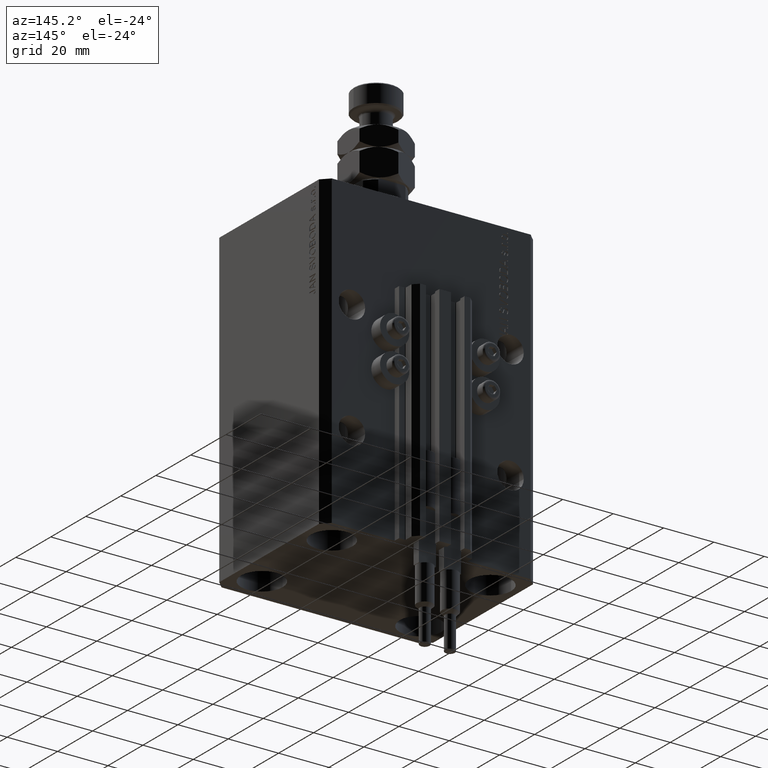
[diagram: clean part render]
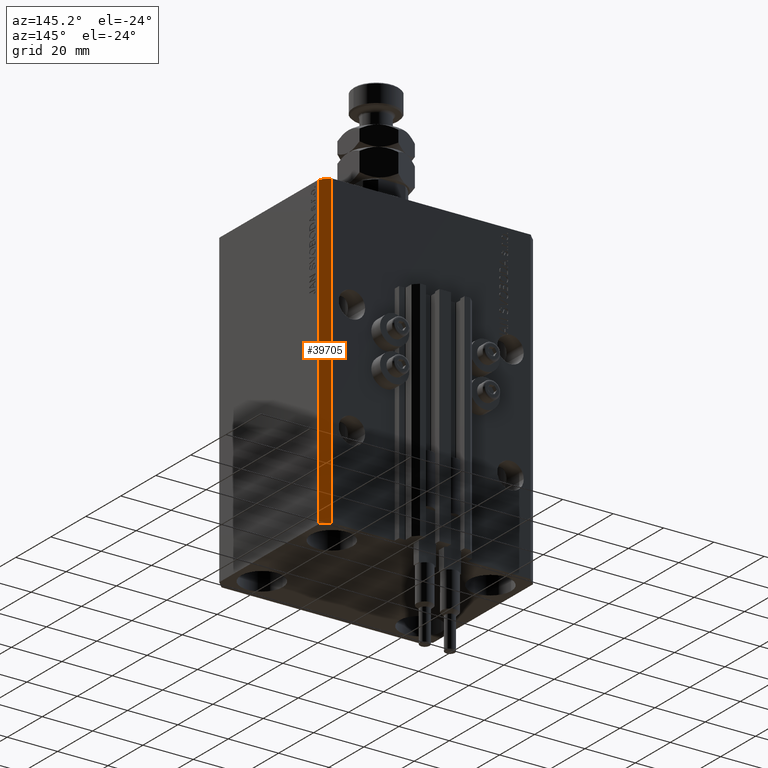
[diagram: same view with one face highlighted and labeled with its STEP entity id]
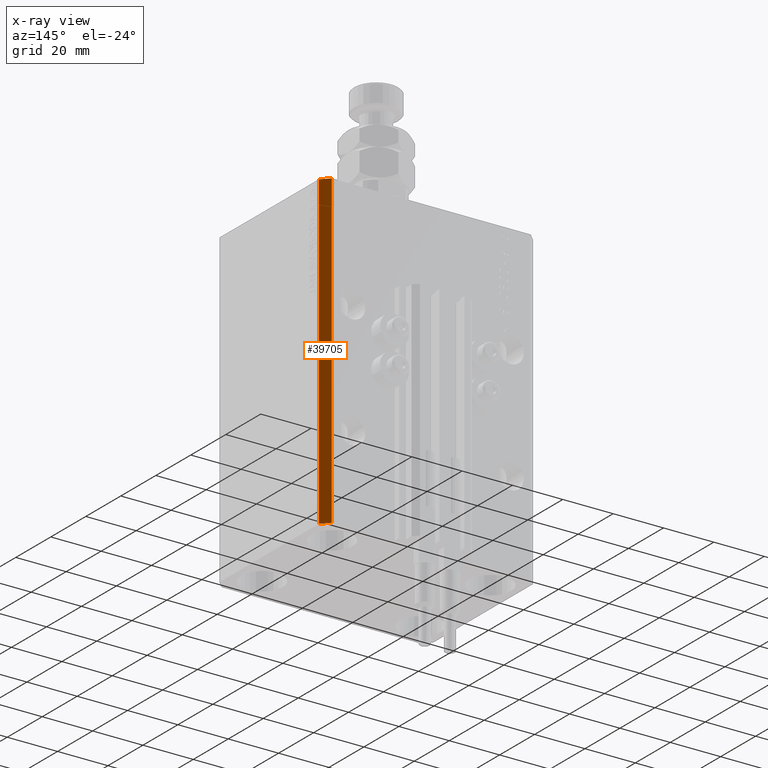
[diagram: x-ray of the same camera — body ghosted, the highlighted face saturated]
A machine part, auxiliary view. The second image highlights one B-rep face of the part: STEP entity #39705.
The next image is the same camera in x-ray: the body ghosted, the highlighted face saturated — about 0% of this face is hidden behind the body in this view.
In plain terms, the highlighted planar face has unit normal (0.7071, 0.7071, 0).
Its self-contained STEP definition (entity closure, byte-faithful):
#35 = LINE ( 'NONE', #34563, #16043 ) ;
#1052 = CARTESIAN_POINT ( 'NONE',  ( 39.50000000000056843, 31.50000000000000000, -123.0000000000000000 ) ) ;
#1592 = EDGE_CURVE ( 'NONE', #23711, #47280, #7141, .T. ) ;
#2603 = EDGE_CURVE ( 'NONE', #36631, #47280, #3307, .T. ) ;
#3307 = LINE ( 'NONE', #50125, #9659 ) ;
#4073 = DIRECTION ( 'NONE',  ( 0.000000000000000000, 0.000000000000000000, 1.000000000000000000 ) ) ;
#6028 = DIRECTION ( 'NONE',  ( 0.7071067811865594521, 0.7071067811865355823, -0.000000000000000000 ) ) ;
#7141 = LINE ( 'NONE', #15055, #16991 ) ;
#7650 = DIRECTION ( 'NONE',  ( -0.7071067811865356934, 0.7071067811865594521, 0.000000000000000000 ) ) ;
#8415 = CARTESIAN_POINT ( 'NONE',  ( 42.50000000000051870, 28.49999999999995381, -123.0000000000000000 ) ) ;
#9659 = VECTOR ( 'NONE', #4073, 1000.000000000000000 ) ;
#10275 = CARTESIAN_POINT ( 'NONE',  ( 39.50000000000056843, 31.50000000000000000, 0.000000000000000000 ) ) ;
#15055 = CARTESIAN_POINT ( 'NONE',  ( 42.50000000000051870, 28.49999999999995381, 0.000000000000000000 ) ) ;
#15405 = EDGE_LOOP ( 'NONE', ( #26767, #31908, #29678, #48592 ) ) ;
#16043 = VECTOR ( 'NONE', #22547, 1000.000000000000114 ) ;
#16295 = CARTESIAN_POINT ( 'NONE',  ( 42.50000000000051870, 28.49999999999995381, -123.0000000000000000 ) ) ;
#16991 = VECTOR ( 'NONE', #7650, 1000.000000000000114 ) ;
#17285 = DIRECTION ( 'NONE',  ( -0.7071067811865355823, 0.7071067811865594521, 0.000000000000000000 ) ) ;
#17632 = EDGE_CURVE ( 'NONE', #22972, #23711, #31085, .T. ) ;
#19344 = VECTOR ( 'NONE', #46694, 1000.000000000000000 ) ;
#20105 = EDGE_CURVE ( 'NONE', #22972, #36631, #35, .T. ) ;
#20124 = FACE_OUTER_BOUND ( 'NONE', #15405, .T. ) ;
#22326 = AXIS2_PLACEMENT_3D ( 'NONE', #16295, #6028, #17285 ) ;
#22547 = DIRECTION ( 'NONE',  ( -0.7071067811865356934, 0.7071067811865594521, 0.000000000000000000 ) ) ;
#22972 = VERTEX_POINT ( 'NONE', #8415 ) ;
#23711 = VERTEX_POINT ( 'NONE', #42020 ) ;
#26767 = ORIENTED_EDGE ( 'NONE', *, *, #1592, .F. ) ;
#29678 = ORIENTED_EDGE ( 'NONE', *, *, #20105, .T. ) ;
#31085 = LINE ( 'NONE', #42597, #19344 ) ;
#31908 = ORIENTED_EDGE ( 'NONE', *, *, #17632, .F. ) ;
#34563 = CARTESIAN_POINT ( 'NONE',  ( 42.50000000000051870, 28.49999999999995381, -123.0000000000000000 ) ) ;
#35721 = PLANE ( 'NONE',  #22326 ) ;
#36631 = VERTEX_POINT ( 'NONE', #1052 ) ;
#39705 = ADVANCED_FACE ( 'NONE', ( #20124 ), #35721, .T. ) ;
#42020 = CARTESIAN_POINT ( 'NONE',  ( 42.50000000000051870, 28.49999999999995381, 0.000000000000000000 ) ) ;
#42597 = CARTESIAN_POINT ( 'NONE',  ( 42.50000000000051870, 28.49999999999995381, -123.0000000000000000 ) ) ;
#46694 = DIRECTION ( 'NONE',  ( 0.000000000000000000, 0.000000000000000000, 1.000000000000000000 ) ) ;
#47280 = VERTEX_POINT ( 'NONE', #10275 ) ;
#48592 = ORIENTED_EDGE ( 'NONE', *, *, #2603, .T. ) ;
#50125 = CARTESIAN_POINT ( 'NONE',  ( 39.50000000000056843, 31.50000000000000000, -123.0000000000000000 ) ) ;